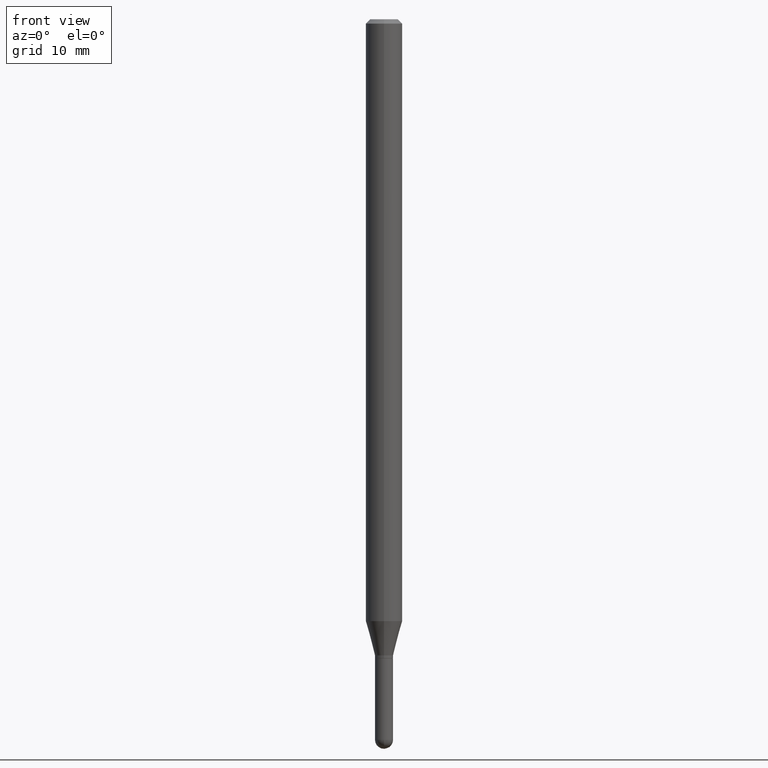
[diagram: clean part render]
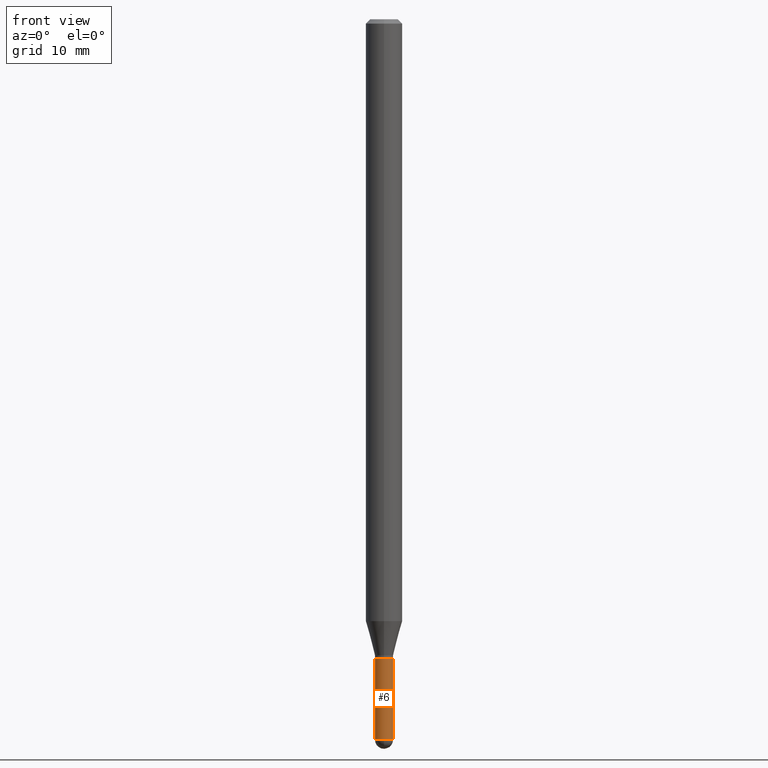
[diagram: same view with one face highlighted and labeled with its STEP entity id]
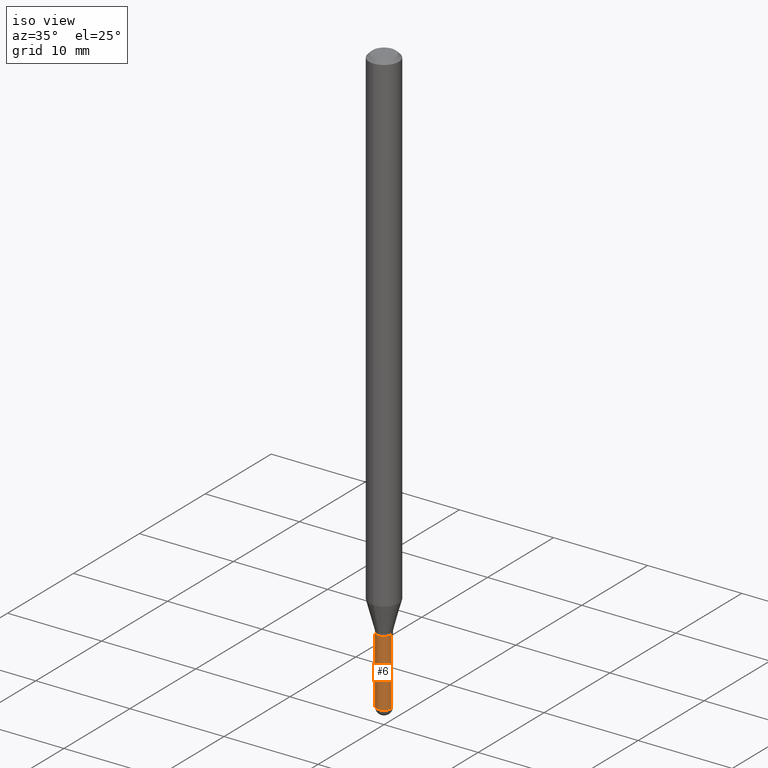
[diagram: same view with one face highlighted and labeled with its STEP entity id]
A machine part, front view. The second image highlights one B-rep face of the part: STEP entity #6.
A second angle (iso view) of the same face is appended — the face is thin or edge-on in the first view.
In plain terms, the highlighted cylindrical surface (edge-blend (fillet) strip) has radius 0.7874 mm, axis along (-0, 0, 1).
Its self-contained STEP definition (entity closure, byte-faithful):
#6 = ADVANCED_FACE ( 'NONE', ( #25 ), #159, .T. ) ;
#25 = FACE_OUTER_BOUND ( 'NONE', #343, .T. ) ;
#35 = VERTEX_POINT ( 'NONE', #285 ) ;
#37 = EDGE_CURVE ( 'NONE', #231, #361, #344, .T. ) ;
#64 = DIRECTION ( 'NONE',  ( -2.445468806185136597E-29, 3.491481338843145583E-15, 1.000000000000000000 ) ) ;
#79 = ORIENTED_EDGE ( 'NONE', *, *, #125, .T. ) ;
#108 = EDGE_CURVE ( 'NONE', #361, #35, #312, .T. ) ;
#116 = DIRECTION ( 'NONE',  ( 1.000000000000000000, -6.982962677686266711E-15, 4.876176775795935232E-29 ) ) ;
#125 = EDGE_CURVE ( 'NONE', #35, #150, #281, .T. ) ;
#130 = ORIENTED_EDGE ( 'NONE', *, *, #108, .T. ) ;
#148 = DIRECTION ( 'NONE',  ( -2.445468806185136877E-29, 3.491481338843145188E-15, 1.000000000000000000 ) ) ;
#150 = VERTEX_POINT ( 'NONE', #509 ) ;
#158 = DIRECTION ( 'NONE',  ( 1.000000000000000000, -6.982962677686270655E-15, 0.000000000000000000 ) ) ;
#159 = CYLINDRICAL_SURFACE ( 'NONE', #467, 0.03099999999999999978 ) ;
#161 = EDGE_CURVE ( 'NONE', #231, #447, #228, .T. ) ;
#163 = VECTOR ( 'NONE', #307, 39.37007874015748143 ) ;
#189 = CARTESIAN_POINT ( 'NONE',  ( -0.03099999999999999978, -7.913137530749477307E-15, -2.469000000000000306 ) ) ;
#228 = LINE ( 'NONE', #279, #163 ) ;
#231 = VERTEX_POINT ( 'NONE', #189 ) ;
#246 = AXIS2_PLACEMENT_3D ( 'NONE', #456, #427, #158 ) ;
#261 = ORIENTED_EDGE ( 'NONE', *, *, #486, .F. ) ;
#267 = CARTESIAN_POINT ( 'NONE',  ( 5.355576685545449192E-29, -7.646344132066488554E-15, -2.189999999999999947 ) ) ;
#279 = CARTESIAN_POINT ( 'NONE',  ( -0.03099999999999999978, 2.202682480856310560E-16, -1.524869877979020612E-30 ) ) ;
#281 = LINE ( 'NONE', #444, #494 ) ;
#285 = CARTESIAN_POINT ( 'NONE',  ( 0.03099999999999999978, -8.349877621843383680E-15, -2.469000000000000306 ) ) ;
#307 = DIRECTION ( 'NONE',  ( -2.445468806185136877E-29, 3.491481338843145188E-15, 1.000000000000000000 ) ) ;
#312 = CIRCLE ( 'NONE', #246, 0.03099999999999999978 ) ;
#316 = DIRECTION ( 'NONE',  ( -2.445468806185136597E-29, 3.491481338843145583E-15, 1.000000000000000000 ) ) ;
#324 = ORIENTED_EDGE ( 'NONE', *, *, #37, .T. ) ;
#337 = CARTESIAN_POINT ( 'NONE',  ( 6.037862482471103495E-29, -8.620467425603728566E-15, -2.469000000000000306 ) ) ;
#341 = CARTESIAN_POINT ( 'NONE',  ( -0.03099999999999999978, -7.913137530749477307E-15, -2.189999999999999947 ) ) ;
#343 = EDGE_LOOP ( 'NONE', ( #368, #324, #130, #79, #261 ) ) ;
#344 = CIRCLE ( 'NONE', #369, 0.03099999999999999978 ) ;
#361 = VERTEX_POINT ( 'NONE', #446 ) ;
#368 = ORIENTED_EDGE ( 'NONE', *, *, #161, .F. ) ;
#369 = AXIS2_PLACEMENT_3D ( 'NONE', #337, #510, #412 ) ;
#378 = AXIS2_PLACEMENT_3D ( 'NONE', #267, #64, #382 ) ;
#382 = DIRECTION ( 'NONE',  ( 1.000000000000000000, -6.982962677686270655E-15, 0.000000000000000000 ) ) ;
#412 = DIRECTION ( 'NONE',  ( 1.000000000000000000, -6.982962677686270655E-15, 0.000000000000000000 ) ) ;
#427 = DIRECTION ( 'NONE',  ( -2.445468806185136597E-29, 3.491481338843145583E-15, 1.000000000000000000 ) ) ;
#444 = CARTESIAN_POINT ( 'NONE',  ( 0.03099999999999999978, -2.164718430082742572E-16, 1.511614800496739984E-30 ) ) ;
#446 = CARTESIAN_POINT ( 'NONE',  ( -2.202682480855692291E-16, -0.03100000000000842360, -2.469000000000000306 ) ) ;
#447 = VERTEX_POINT ( 'NONE', #341 ) ;
#456 = CARTESIAN_POINT ( 'NONE',  ( 6.037862482471103495E-29, -8.620467425603728566E-15, -2.469000000000000306 ) ) ;
#467 = AXIS2_PLACEMENT_3D ( 'NONE', #481, #316, #116 ) ;
#481 = CARTESIAN_POINT ( 'NONE',  ( 0.000000000000000000, 0.000000000000000000, 0.000000000000000000 ) ) ;
#486 = EDGE_CURVE ( 'NONE', #447, #150, #507, .T. ) ;
#494 = VECTOR ( 'NONE', #148, 39.37007874015748143 ) ;
#507 = CIRCLE ( 'NONE', #378, 0.03099999999999999978 ) ;
#509 = CARTESIAN_POINT ( 'NONE',  ( 0.03099999999999999978, -7.862815975074762885E-15, -2.189999999999999947 ) ) ;
#510 = DIRECTION ( 'NONE',  ( -2.445468806185136597E-29, 3.491481338843145583E-15, 1.000000000000000000 ) ) ;